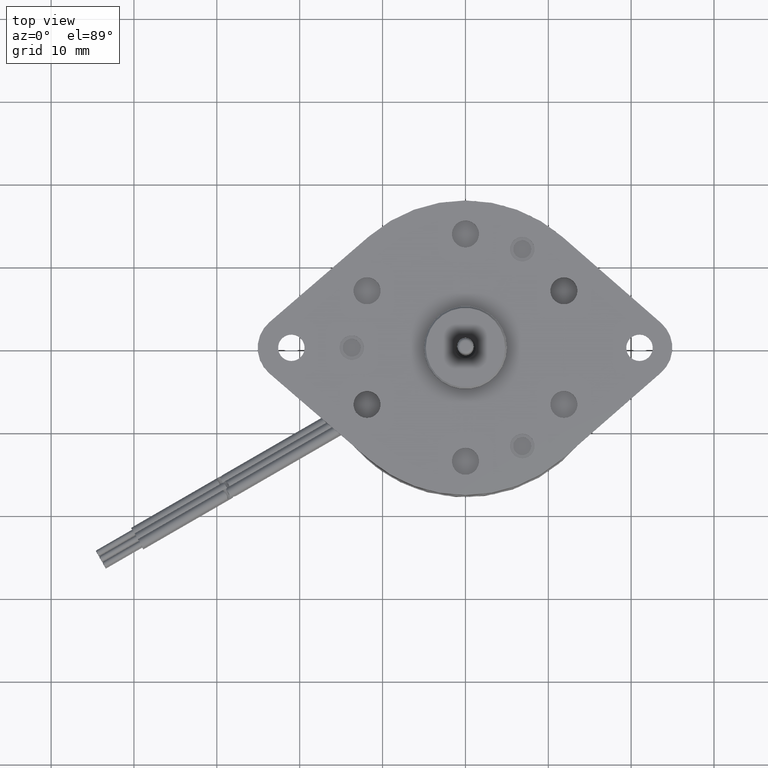
[diagram: clean part render]
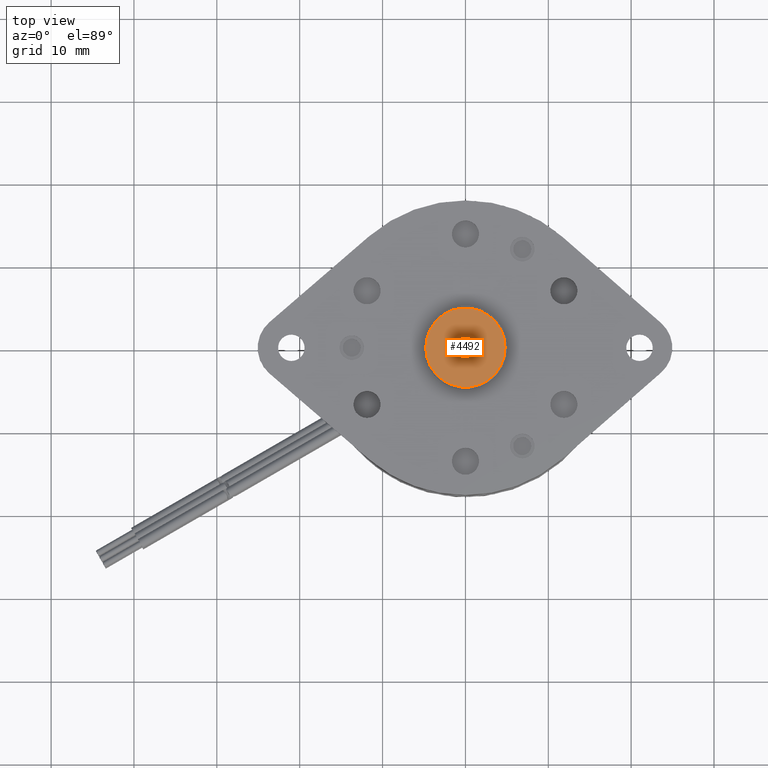
[diagram: same view with one face highlighted and labeled with its STEP entity id]
A machine part, top view. The second image highlights one B-rep face of the part: STEP entity #4492.
In plain terms, the highlighted planar face has unit normal (0, 0, 1).
Its self-contained STEP definition (entity closure, byte-faithful):
#37=CARTESIAN_POINT('',(0.E0,0.E0,4.12E-1));
#38=DIRECTION('',(0.E0,0.E0,-1.E0));
#39=DIRECTION('',(-1.E0,3.416272717786E-14,0.E0));
#40=AXIS2_PLACEMENT_3D('',#37,#38,#39);
#42=CARTESIAN_POINT('',(0.E0,0.E0,4.12E-1));
#43=DIRECTION('',(0.E0,0.E0,-1.E0));
#44=DIRECTION('',(1.E0,-3.399197019281E-14,0.E0));
#45=AXIS2_PLACEMENT_3D('',#42,#43,#44);
#47=CARTESIAN_POINT('',(0.E0,0.E0,4.120000000001E-1));
#48=DIRECTION('',(0.E0,0.E0,1.E0));
#49=DIRECTION('',(-1.E0,0.E0,0.E0));
#50=AXIS2_PLACEMENT_3D('',#47,#48,#49);
#52=CARTESIAN_POINT('',(0.E0,0.E0,4.120000000001E-1));
#53=DIRECTION('',(0.E0,0.E0,1.E0));
#54=DIRECTION('',(1.E0,0.E0,0.E0));
#55=AXIS2_PLACEMENT_3D('',#52,#53,#54);
#4206=CARTESIAN_POINT('',(1.884590036882E-1,0.E0,4.12E-1));
#4207=VERTEX_POINT('',#4206);
#4208=CARTESIAN_POINT('',(-1.884590036882E-1,0.E0,4.12E-1));
#4209=VERTEX_POINT('',#4208);
#4210=CARTESIAN_POINT('',(-5.000000000003E-2,0.E0,4.120000000001E-1));
#4211=CARTESIAN_POINT('',(5.000000000003E-2,0.E0,4.120000000001E-1));
#4212=VERTEX_POINT('',#4210);
#4213=VERTEX_POINT('',#4211);
#4477=CARTESIAN_POINT('',(0.E0,0.E0,4.12E-1));
#4478=DIRECTION('',(0.E0,0.E0,1.E0));
#4479=DIRECTION('',(-1.E0,0.E0,0.E0));
#4480=AXIS2_PLACEMENT_3D('',#4477,#4478,#4479);
#4481=PLANE('',#4480);
#4483=ORIENTED_EDGE('',*,*,#4482,.T.);
#4485=ORIENTED_EDGE('',*,*,#4484,.T.);
#4486=EDGE_LOOP('',(#4483,#4485));
#4487=FACE_OUTER_BOUND('',#4486,.F.);
#4488=ORIENTED_EDGE('',*,*,#4470,.T.);
#4489=ORIENTED_EDGE('',*,*,#4459,.T.);
#4490=EDGE_LOOP('',(#4488,#4489));
#4491=FACE_BOUND('',#4490,.F.);
#4492=ADVANCED_FACE('',(#4487,#4491),#4481,.T.);
#41=CIRCLE('',#40,1.884590036882E-1);
#46=CIRCLE('',#45,1.884590036882E-1);
#51=CIRCLE('',#50,5.000000000003E-2);
#56=CIRCLE('',#55,5.000000000003E-2);
#4459=EDGE_CURVE('',#4213,#4212,#56,.T.);
#4470=EDGE_CURVE('',#4212,#4213,#51,.T.);
#4482=EDGE_CURVE('',#4209,#4207,#41,.T.);
#4484=EDGE_CURVE('',#4207,#4209,#46,.T.);